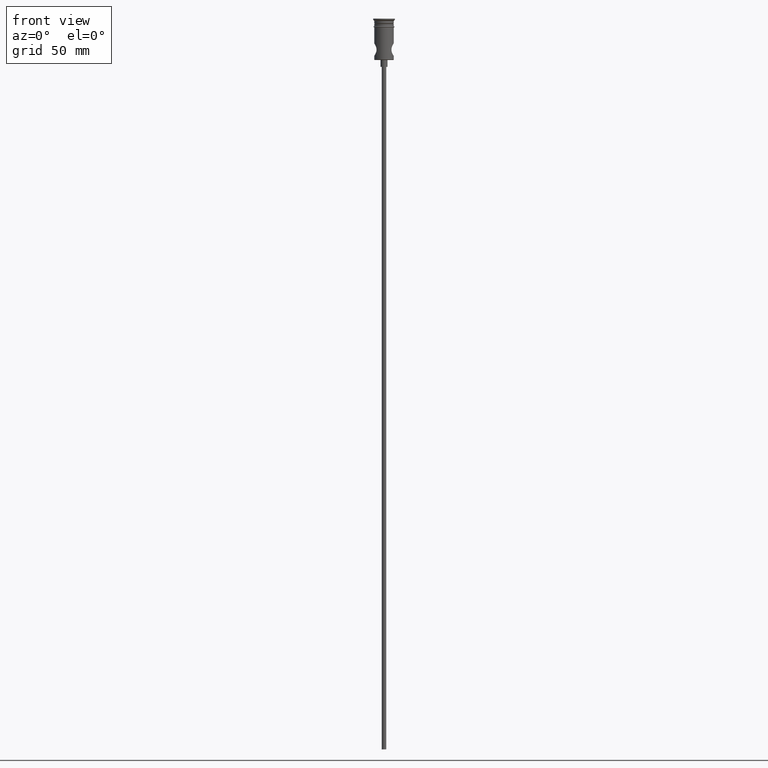
[diagram: clean part render]
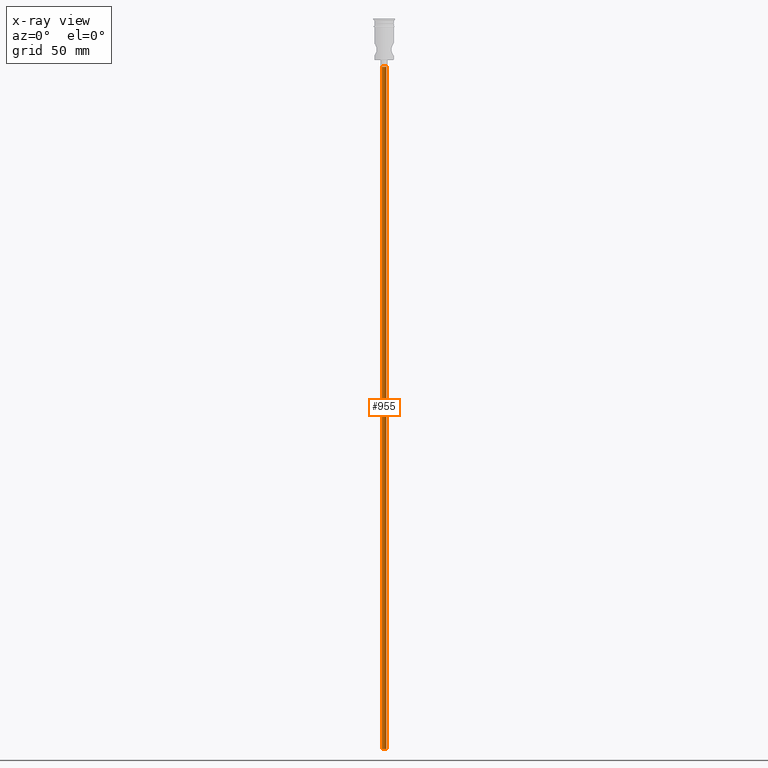
[diagram: x-ray — body ghosted, one internal face saturated and labeled with its STEP entity id]
A machine part, front view, then the same camera in x-ray: the body is ghosted and one INTERNAL B-rep face — a face not visible from any outside direction — is saturated and labeled: STEP entity #955.
In plain terms, the highlighted cylindrical surface (edge-blend (fillet) strip) has radius 1 mm, axis along (-0, -0, 1).
Its self-contained STEP definition (entity closure, byte-faithful):
#71 = AXIS2_PLACEMENT_3D ( 'NONE', #1089, #191, #1065 ) ;
#80 = EDGE_LOOP ( 'NONE', ( #1224, #1126, #640, #1376 ) ) ;
#122 = DIRECTION ( 'NONE',  ( 0.000000000000000000, 0.000000000000000000, -1.000000000000000000 ) ) ;
#156 = EDGE_CURVE ( 'NONE', #837, #457, #572, .T. ) ;
#165 = VECTOR ( 'NONE', #1380, 1000.000000000000000 ) ;
#191 = DIRECTION ( 'NONE',  ( 0.000000000000000000, 0.000000000000000000, -1.000000000000000000 ) ) ;
#225 = DIRECTION ( 'NONE',  ( 1.000000000000000000, 0.000000000000000000, 0.000000000000000000 ) ) ;
#228 = EDGE_CURVE ( 'NONE', #837, #942, #934, .T. ) ;
#261 = DIRECTION ( 'NONE',  ( -0.000000000000000000, -0.000000000000000000, 1.000000000000000000 ) ) ;
#355 = CARTESIAN_POINT ( 'NONE',  ( 0.9999999999999997780, 0.000000000000000000, -318.0000000000000000 ) ) ;
#401 = VECTOR ( 'NONE', #261, 1000.000000000000000 ) ;
#441 = CYLINDRICAL_SURFACE ( 'NONE', #1338, 0.9999999999999997780 ) ;
#442 = EDGE_CURVE ( 'NONE', #457, #1375, #581, .T. ) ;
#457 = VERTEX_POINT ( 'NONE', #355 ) ;
#551 = DIRECTION ( 'NONE',  ( -0.000000000000000000, -0.000000000000000000, 1.000000000000000000 ) ) ;
#572 = CIRCLE ( 'NONE', #845, 0.9999999999999997780 ) ;
#581 = LINE ( 'NONE', #899, #401 ) ;
#628 = CARTESIAN_POINT ( 'NONE',  ( -0.9999999999999997780, 1.224646799147352961E-16, -318.0000000000000000 ) ) ;
#631 = CIRCLE ( 'NONE', #71, 0.9999999999999997780 ) ;
#640 = ORIENTED_EDGE ( 'NONE', *, *, #870, .T. ) ;
#786 = DIRECTION ( 'NONE',  ( -1.000000000000000000, 0.000000000000000000, 0.000000000000000000 ) ) ;
#837 = VERTEX_POINT ( 'NONE', #628 ) ;
#845 = AXIS2_PLACEMENT_3D ( 'NONE', #1321, #122, #786 ) ;
#870 = EDGE_CURVE ( 'NONE', #942, #1375, #631, .T. ) ;
#882 = CARTESIAN_POINT ( 'NONE',  ( 0.000000000000000000, 0.000000000000000000, -318.0000000000000000 ) ) ;
#899 = CARTESIAN_POINT ( 'NONE',  ( 0.9999999999999997780, 0.000000000000000000, -318.0000000000000000 ) ) ;
#934 = LINE ( 'NONE', #949, #165 ) ;
#942 = VERTEX_POINT ( 'NONE', #1346 ) ;
#949 = CARTESIAN_POINT ( 'NONE',  ( -0.9999999999999997780, 1.224646799147352961E-16, -318.0000000000000000 ) ) ;
#955 = ADVANCED_FACE ( 'NONE', ( #1354 ), #441, .T. ) ;
#975 = CARTESIAN_POINT ( 'NONE',  ( 0.9999999999999997780, 0.000000000000000000, -20.99999999999999645 ) ) ;
#1065 = DIRECTION ( 'NONE',  ( -1.000000000000000000, 0.000000000000000000, 0.000000000000000000 ) ) ;
#1089 = CARTESIAN_POINT ( 'NONE',  ( 0.000000000000000000, 0.000000000000000000, -20.99999999999999645 ) ) ;
#1126 = ORIENTED_EDGE ( 'NONE', *, *, #228, .T. ) ;
#1224 = ORIENTED_EDGE ( 'NONE', *, *, #156, .F. ) ;
#1321 = CARTESIAN_POINT ( 'NONE',  ( 0.000000000000000000, 0.000000000000000000, -318.0000000000000000 ) ) ;
#1338 = AXIS2_PLACEMENT_3D ( 'NONE', #882, #551, #225 ) ;
#1346 = CARTESIAN_POINT ( 'NONE',  ( -0.9999999999999997780, 1.224646799147352961E-16, -20.99999999999999645 ) ) ;
#1354 = FACE_OUTER_BOUND ( 'NONE', #80, .T. ) ;
#1375 = VERTEX_POINT ( 'NONE', #975 ) ;
#1376 = ORIENTED_EDGE ( 'NONE', *, *, #442, .F. ) ;
#1380 = DIRECTION ( 'NONE',  ( -0.000000000000000000, -0.000000000000000000, 1.000000000000000000 ) ) ;